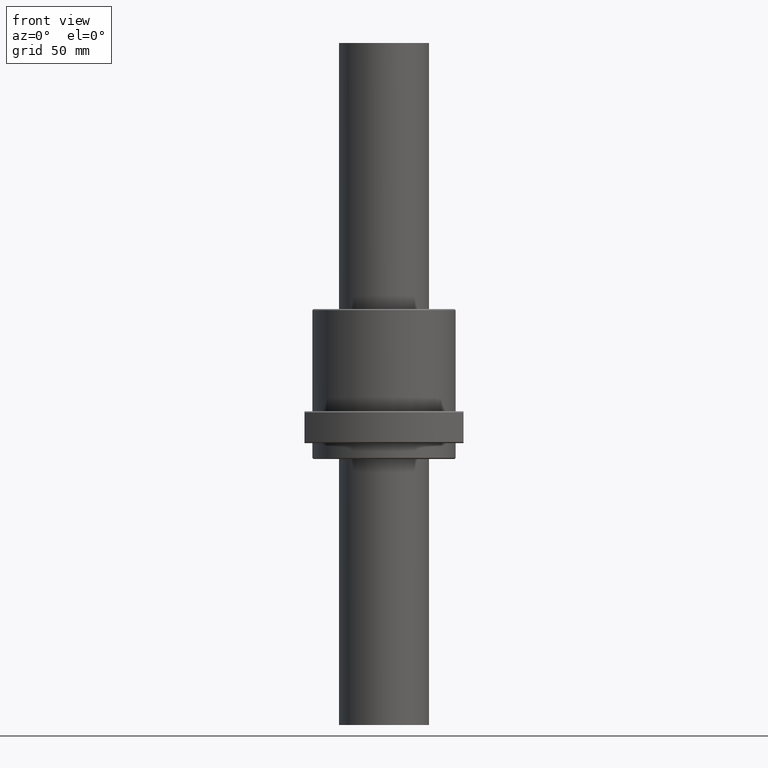
[diagram: clean part render]
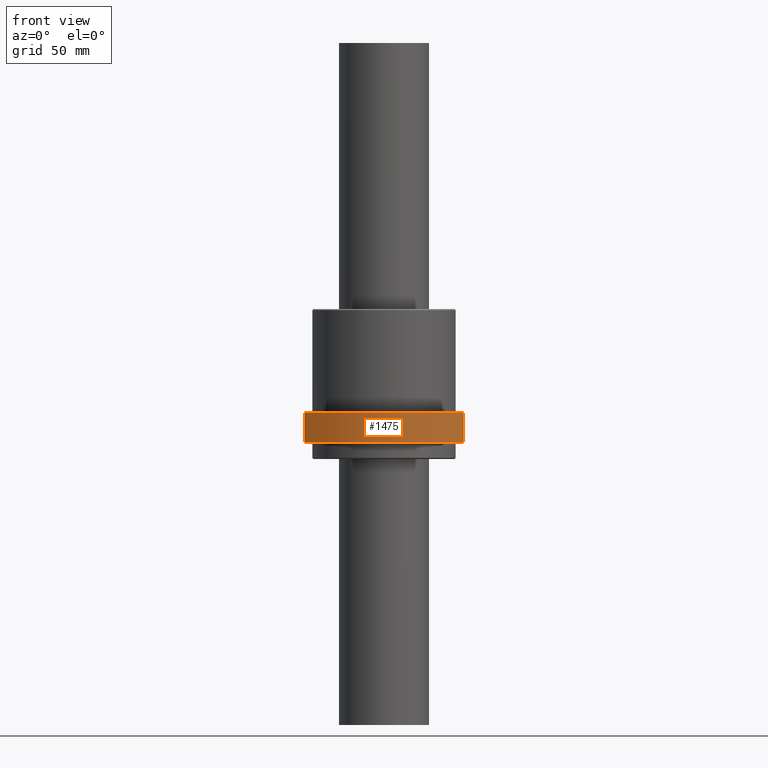
[diagram: same view with one face highlighted and labeled with its STEP entity id]
A machine part, front view. The second image highlights one B-rep face of the part: STEP entity #1475.
In plain terms, the highlighted cylindrical surface (partial cylindrical patch) has radius 46.5 mm, axis along (0, 0, -1).
Its self-contained STEP definition (entity closure, byte-faithful):
#263 = EDGE_CURVE ( 'NONE', #500, #264, #1544, .T. ) ;
#264 = VERTEX_POINT ( 'NONE', #1536 ) ;
#393 = CIRCLE ( 'NONE', #843, 46.50000774999999500 ) ;
#407 = ORIENTED_EDGE ( 'NONE', *, *, #263, .F. ) ;
#414 = DIRECTION ( 'NONE',  ( 0.0000000000000000000, -0.0000000000000000000, 1.000000000000000000 ) ) ;
#416 = CARTESIAN_POINT ( 'NONE',  ( -35.00000000000000000, -30.61455080104981300, -20.49999787561344200 ) ) ;
#423 = LINE ( 'NONE', #416, #704 ) ;
#500 = VERTEX_POINT ( 'NONE', #1407 ) ;
#604 = EDGE_CURVE ( 'NONE', #1663, #264, #393, .T. ) ;
#615 = EDGE_LOOP ( 'NONE', ( #1781, #407, #635, #1874 ) ) ;
#635 = ORIENTED_EDGE ( 'NONE', *, *, #1303, .T. ) ;
#669 = CARTESIAN_POINT ( 'NONE',  ( -35.00000292060594400, -30.61454157629823300, -20.49999787561344200 ) ) ;
#704 = VECTOR ( 'NONE', #414, 1000.000000000000000 ) ;
#805 = DIRECTION ( 'NONE',  ( 1.000000000000000000, 0.0000000000000000000, 0.0000000000000000000 ) ) ;
#808 = DIRECTION ( 'NONE',  ( 0.0000000000000000000, -0.0000000000000000000, 1.000000000000000000 ) ) ;
#811 = CARTESIAN_POINT ( 'NONE',  ( 0.0000000000000000000, 0.0000000000000000000, -20.49999400000000100 ) ) ;
#843 = AXIS2_PLACEMENT_3D ( 'NONE', #1325, #1324, #1323 ) ;
#872 = CARTESIAN_POINT ( 'NONE',  ( -35.00000292148485700, -30.61454157528656200, -7.499990124382056100 ) ) ;
#893 = DIRECTION ( 'NONE',  ( 1.000000000000000000, 0.0000000000000000000, 0.0000000000000000000 ) ) ;
#895 = DIRECTION ( 'NONE',  ( -0.0000000000000000000, 0.0000000000000000000, -1.000000000000000000 ) ) ;
#900 = CARTESIAN_POINT ( 'NONE',  ( 0.0000000000000000000, 0.0000000000000000000, -7.499993999999999200 ) ) ;
#964 = CIRCLE ( 'NONE', #1581, 46.50000774999999500 ) ;
#1303 = EDGE_CURVE ( 'NONE', #500, #1386, #964, .T. ) ;
#1323 = DIRECTION ( 'NONE',  ( 1.000000000000000000, 0.0000000000000000000, 0.0000000000000000000 ) ) ;
#1324 = DIRECTION ( 'NONE',  ( 0.0000000000000000000, -0.0000000000000000000, 1.000000000000000000 ) ) ;
#1325 = CARTESIAN_POINT ( 'NONE',  ( 0.0000000000000000000, 0.0000000000000000000, -20.49999400000000100 ) ) ;
#1386 = VERTEX_POINT ( 'NONE', #872 ) ;
#1407 = CARTESIAN_POINT ( 'NONE',  ( 35.00000292413608300, -30.61454157226240400, -7.499990124386556500 ) ) ;
#1452 = CYLINDRICAL_SURFACE ( 'NONE', #1457, 46.50000774999999500 ) ;
#1457 = AXIS2_PLACEMENT_3D ( 'NONE', #811, #808, #805 ) ;
#1475 = ADVANCED_FACE ( 'NONE', ( #1557 ), #1452, .T. ) ;
#1536 = CARTESIAN_POINT ( 'NONE',  ( 35.00000292501500400, -30.61454157125075100, -20.49999787561794300 ) ) ;
#1538 = DIRECTION ( 'NONE',  ( -0.0000000000000000000, 0.0000000000000000000, -1.000000000000000000 ) ) ;
#1541 = CARTESIAN_POINT ( 'NONE',  ( 35.00000000000000000, -30.61455080104980600, -7.499990124386556500 ) ) ;
#1544 = LINE ( 'NONE', #1541, #1972 ) ;
#1557 = FACE_OUTER_BOUND ( 'NONE', #615, .T. ) ;
#1581 = AXIS2_PLACEMENT_3D ( 'NONE', #900, #895, #893 ) ;
#1663 = VERTEX_POINT ( 'NONE', #669 ) ;
#1781 = ORIENTED_EDGE ( 'NONE', *, *, #604, .T. ) ;
#1874 = ORIENTED_EDGE ( 'NONE', *, *, #1887, .F. ) ;
#1887 = EDGE_CURVE ( 'NONE', #1663, #1386, #423, .T. ) ;
#1972 = VECTOR ( 'NONE', #1538, 1000.000000000000000 ) ;